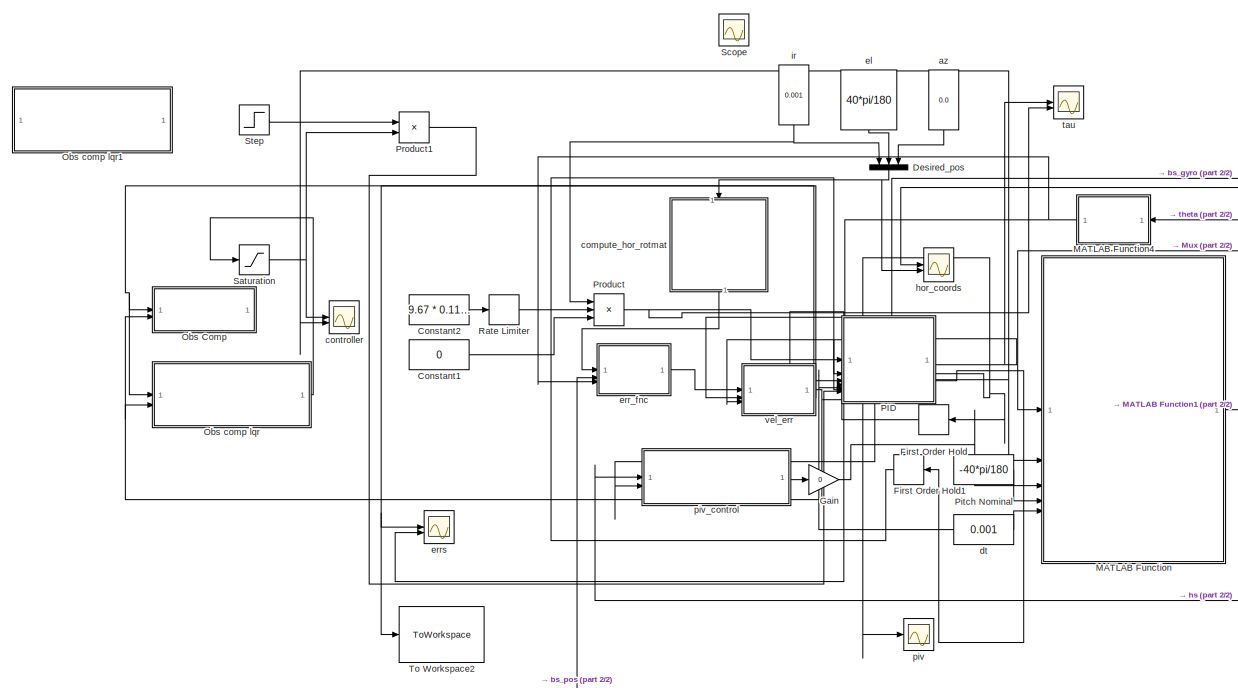
[diagram: root canvas - part 1/2, left side, full height]
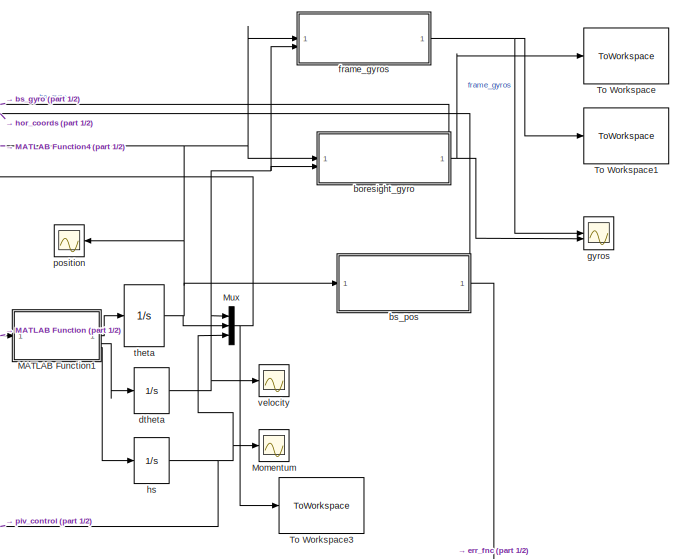
[diagram: root canvas - part 2/2, right side, full height]
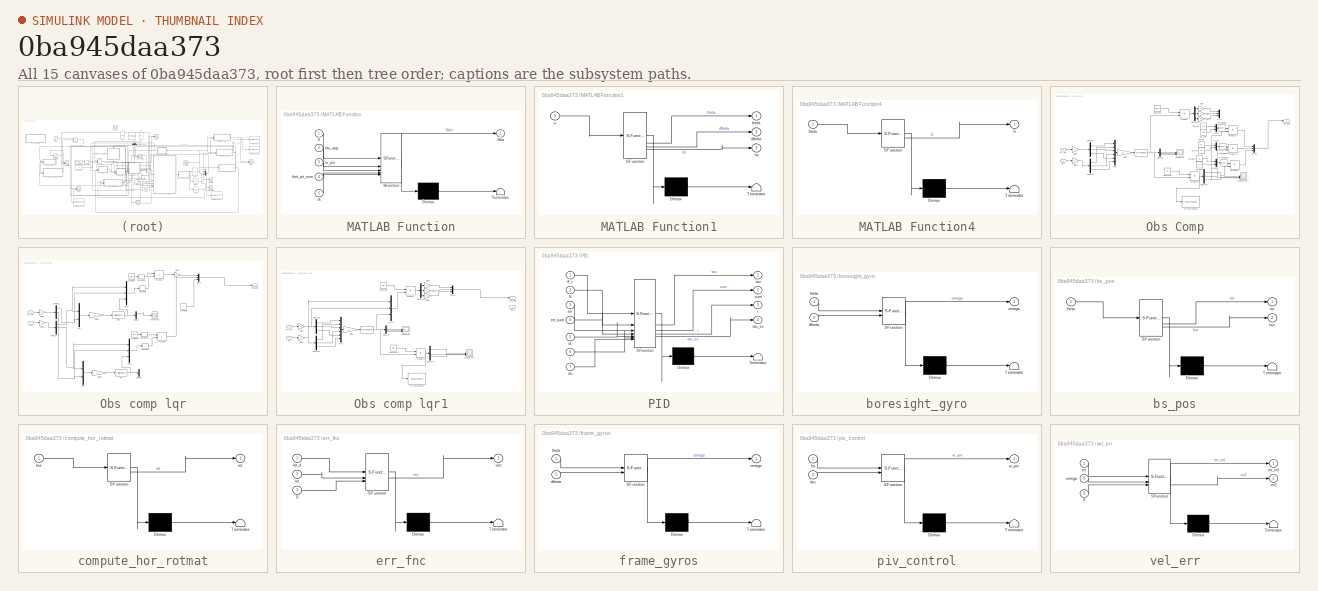
[diagram: thumbnail index - all 15 canvases of the model, root first then tree order]
MODEL slx_0ba945daa373
KIND model
CONFIG AbsTol = auto
CONFIG EnableMultiTasking = off
CONFIG FixedStep = 0.001
CONFIG MaxStep = 0.005
CONFIG MinStep = auto
CONFIG RelTol = 1e-3
CONFIG SampleTimeConstraint = Unconstrained
CONFIG SolverName = FixedStepAuto
CONFIG StartTime = 0.0
CONFIG StopTime = 1000
BLOCK [Constant] Constant1
  Value = 0
BLOCK [Constant] Constant2
  Value = 9.67 * 0.113 * 180 / pi
BLOCK [Mux] Desired_pos
  DisplayOption = bar
  Inputs = 3
  NameLocation = left
BLOCK [FirstOrderHold] First Order Hold
  AllowContinuousInput = on
  ErrorTolerance = 10
  InitialOutput = zeros(3,1)
  NameLocation = top
BLOCK [FirstOrderHold] First Order Hold1
  AllowContinuousInput = on
  ErrorTolerance = 10
  NameLocation = top
BLOCK [Gain] Gain
  Gain = 0
BLOCK [SubSystem] MATLAB Function
  ErrorFcn = Stateflow.Translate.translate
  PermitHierarchicalResolution = ExplicitOnly
  SFBlockType = MATLAB Function
  TreatAsAtomicUnit = on
BLOCK [Demux] MATLAB Function/ Demux 
  Outputs = 1
BLOCK [S-Function] MATLAB Function/ SFunction 
  EnableBusSupport = on
  FunctionName = sf_sfun
  PortCounts = [5 2]
  SFcnIsStateOwnerBlock = off
  SFunctionDeploymentMode = off
  Tag = Stateflow S-Function 2
BLOCK [Terminator] MATLAB Function/ Terminator 
BLOCK [Inport] MATLAB Function/X
BLOCK [Outport] MATLAB Function/Xdot
BLOCK [Inport] MATLAB Function/dt
  Port = 5
BLOCK [Inport] MATLAB Function/tau_app
  Port = 2
BLOCK [Inport] MATLAB Function/thet_pit_nom
  Port = 4
BLOCK [Inport] MATLAB Function/w_piv
  Port = 3
BLOCK [SubSystem] MATLAB Function1
  ErrorFcn = Stateflow.Translate.translate
  PermitHierarchicalResolution = ExplicitOnly
  SFBlockType = MATLAB Function
  TreatAsAtomicUnit = on
BLOCK [Demux] MATLAB Function1/ Demux 
  Outputs = 1
BLOCK [S-Function] MATLAB Function1/ SFunction 
  EnableBusSupport = on
  FunctionName = sf_sfun
  PortCounts = [1 4]
  SFcnIsStateOwnerBlock = off
  SFunctionDeploymentMode = off
  Tag = Stateflow S-Function 1
BLOCK [Terminator] MATLAB Function1/ Terminator 
BLOCK [Outport] MATLAB Function1/dtheta
  Port = 2
BLOCK [Outport] MATLAB Function1/hs
  Port = 3
BLOCK [Outport] MATLAB Function1/theta
BLOCK [Inport] MATLAB Function1/u
BLOCK [SubSystem] MATLAB Function4
  ErrorFcn = Stateflow.Translate.translate
  NameLocation = top
  PermitHierarchicalResolution = ExplicitOnly
  SFBlockType = MATLAB Function
  TreatAsAtomicUnit = on
BLOCK [Demux] MATLAB Function4/ Demux 
  Outputs = 1
BLOCK [S-Function] MATLAB Function4/ SFunction 
  EnableBusSupport = on
  FunctionName = sf_sfun
  PortCounts = [1 2]
  SFcnIsStateOwnerBlock = off
  SFunctionDeploymentMode = off
  Tag = Stateflow S-Function 8
BLOCK [Terminator] MATLAB Function4/ Terminator 
BLOCK [Outport] MATLAB Function4/S
BLOCK [Inport] MATLAB Function4/theta
BLOCK [Scope] Momentum
  Floating = off
  NumInputPorts = 1
  ScopeSpecificationString = Simulink.scopes.TimeScopeBlockCfg('CurrentConfiguration', extmgr.ConfigurationSet(extmgr.Configuration('Core','General UI',true),extmgr.Configuration('Core','Source UI',true),extmgr.Configuration('Sources','WiredSimulink',true,'DataLoggingVariableName','ScopeData2'),extmgr.Configuration('Visuals','Time Domain',true,'SerializedDisplays',{struct('MinYLimReal','-3.54862','MaxYLimReal','31.93757','YLa...<+1483ch>
BLOCK [Mux] Mux
  DisplayOption = bar
  Inputs = 3
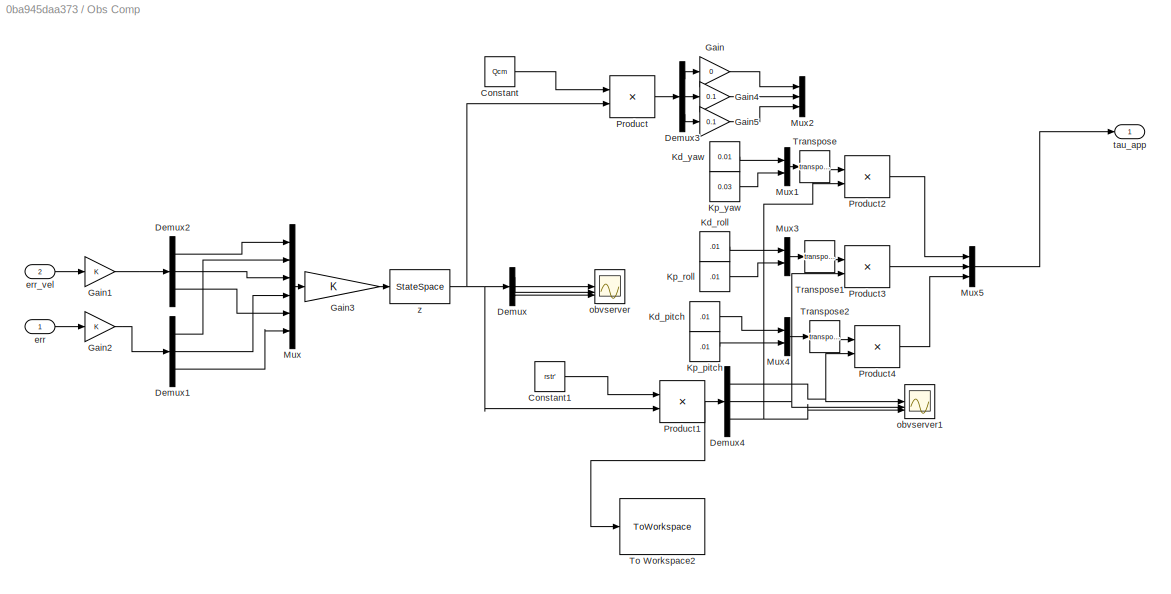
BLOCK [SubSystem] Obs Comp
BLOCK [Constant] Obs Comp/Constant
  Commented = on
  Value = Qcm
BLOCK [Constant] Obs Comp/Constant1
  Value = rstr'
BLOCK [Demux] Obs Comp/Demux
  Outputs = 3
BLOCK [Demux] Obs Comp/Demux1
  Outputs = 3
BLOCK [Demux] Obs Comp/Demux2
  Outputs = 3
BLOCK [Demux] Obs Comp/Demux3
  Commented = on
  Outputs = 3
BLOCK [Demux] Obs Comp/Demux4
  Outputs = 3
BLOCK [Gain] Obs Comp/Gain
  Commented = on
  Gain = 0
BLOCK [Gain] Obs Comp/Gain1
BLOCK [Gain] Obs Comp/Gain2
BLOCK [Gain] Obs Comp/Gain3
BLOCK [Gain] Obs Comp/Gain4
  Commented = on
  Gain = 0.1
BLOCK [Gain] Obs Comp/Gain5
  Commented = on
  Gain = 0.1
BLOCK [Constant] Obs Comp/Kd_pitch
  NameLocation = left
  Value = .01
BLOCK [Constant] Obs Comp/Kd_roll
  NameLocation = left
  Value = .01
BLOCK [Constant] Obs Comp/Kd_yaw
  NameLocation = left
  Value = 0.01
BLOCK [Constant] Obs Comp/Kp_pitch
  NameLocation = left
  Value = .01
BLOCK [Constant] Obs Comp/Kp_roll
  NameLocation = left
  Value = .01
BLOCK [Constant] Obs Comp/Kp_yaw
  NameLocation = left
  Value = 0.03
  VectorParams1D = off
BLOCK [Mux] Obs Comp/Mux
  DisplayOption = bar
  Inputs = 6
BLOCK [Mux] Obs Comp/Mux1
  DisplayOption = bar
  Inputs = 2
BLOCK [Mux] Obs Comp/Mux2
  Commented = on
  DisplayOption = bar
  Inputs = 3
BLOCK [Mux] Obs Comp/Mux3
  DisplayOption = bar
  Inputs = 2
BLOCK [Mux] Obs Comp/Mux4
  DisplayOption = bar
  Inputs = 2
BLOCK [Mux] Obs Comp/Mux5
  DisplayOption = bar
  Inputs = 3
BLOCK [Product] Obs Comp/Product
  Commented = on
  Multiplication = Matrix(*)
BLOCK [Product] Obs Comp/Product1
  Multiplication = Matrix(*)
BLOCK [Product] Obs Comp/Product2
  Multiplication = Matrix(*)
BLOCK [Product] Obs Comp/Product3
  Multiplication = Matrix(*)
BLOCK [Product] Obs Comp/Product4
  Multiplication = Matrix(*)
BLOCK [ToWorkspace] Obs Comp/To Workspace2
  FixptAsFi = on
  MaxDataPoints = inf
  SampleTime = -1
  SaveFormat = Timeseries
  VariableName = servo2
BLOCK [Math] Obs Comp/Transpose
  Operator = transpose
BLOCK [Math] Obs Comp/Transpose1
  Operator = transpose
BLOCK [Math] Obs Comp/Transpose2
  Operator = transpose
BLOCK [Inport] Obs Comp/err
BLOCK [Inport] Obs Comp/err_vel
  Port = 2
BLOCK [Scope] Obs Comp/obvserver
  Floating = off
  NumInputPorts = 3
  ScopeSpecificationString = Simulink.scopes.TimeScopeBlockCfg('CurrentConfiguration', extmgr.ConfigurationSet(extmgr.Configuration('Core','General UI',true),extmgr.Configuration('Core','Source UI',true),extmgr.Configuration('Sources','WiredSimulink',true,'DataLoggingVariableName','ScopeData1'),extmgr.Configuration('Visuals','Time Domain',true,'SerializedDisplays',{struct('MinYLimReal','-0.05566','MaxYLimReal','0.07954','YLab...<+2749ch>
BLOCK [Scope] Obs Comp/obvserver1
  Floating = off
  NumInputPorts = 3
  ScopeSpecificationString = Simulink.scopes.TimeScopeBlockCfg('CurrentConfiguration', extmgr.ConfigurationSet(extmgr.Configuration('Core','General UI',true),extmgr.Configuration('Core','Source UI',true),extmgr.Configuration('Sources','WiredSimulink',true,'DataLoggingVariableName','ScopeData1'),extmgr.Configuration('Visuals','Time Domain',true,'SerializedDisplays',{struct('MinYLimReal','-0.05566','MaxYLimReal','0.07954','YLab...<+2755ch>
BLOCK [Outport] Obs Comp/tau_app
BLOCK [StateSpace] Obs Comp/z
  A = sstr
  B = rstr
  C = eye(ns*3)
  D = zeros(ns*3,6)
  InitialCondition = 0
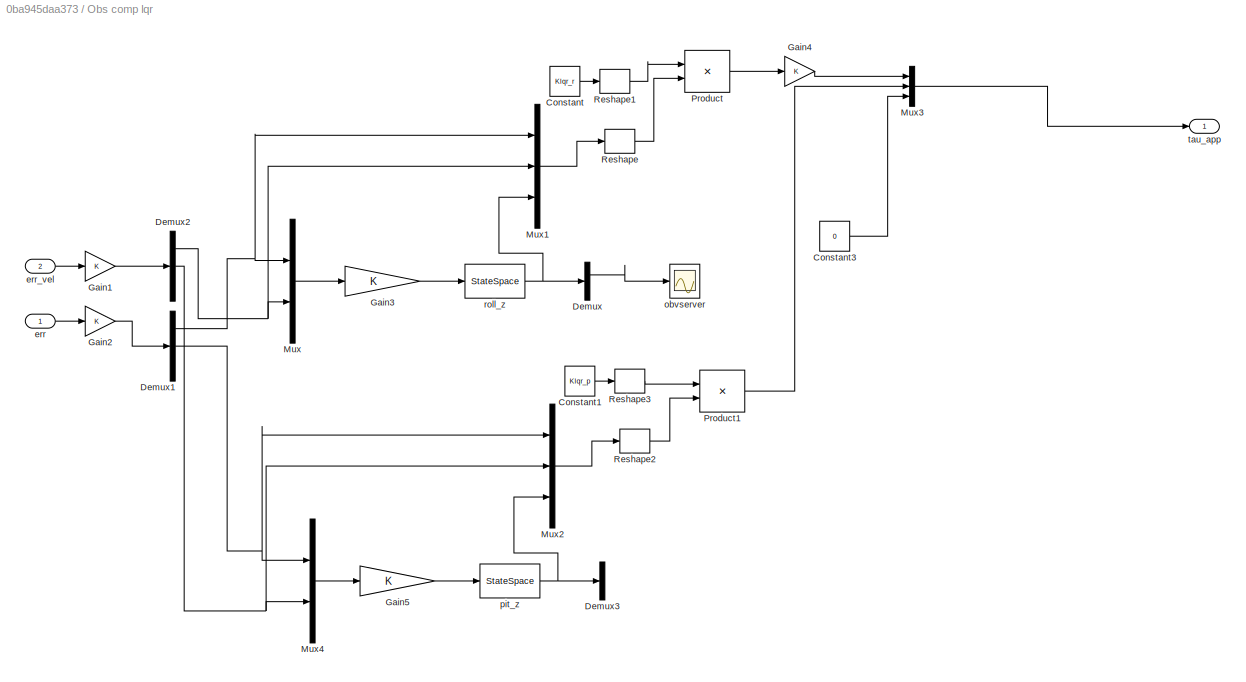
BLOCK [SubSystem] Obs comp lqr
BLOCK [Constant] Obs comp lqr/Constant
  Value = Klqr_r
BLOCK [Constant] Obs comp lqr/Constant1
  Value = Klqr_p
BLOCK [Constant] Obs comp lqr/Constant3
  Value = 0
BLOCK [Demux] Obs comp lqr/Demux
  Outputs = 1
BLOCK [Demux] Obs comp lqr/Demux1
  Outputs = 3
BLOCK [Demux] Obs comp lqr/Demux2
  Outputs = 3
BLOCK [Demux] Obs comp lqr/Demux3
  Outputs = 1
BLOCK [Gain] Obs comp lqr/Gain1
BLOCK [Gain] Obs comp lqr/Gain2
BLOCK [Gain] Obs comp lqr/Gain3
BLOCK [Gain] Obs comp lqr/Gain4
BLOCK [Gain] Obs comp lqr/Gain5
BLOCK [Mux] Obs comp lqr/Mux
  DisplayOption = bar
  Inputs = 2
BLOCK [Mux] Obs comp lqr/Mux1
  DisplayOption = bar
  Inputs = 3
BLOCK [Mux] Obs comp lqr/Mux2
  DisplayOption = bar
  Inputs = 3
BLOCK [Mux] Obs comp lqr/Mux3
  DisplayOption = bar
  Inputs = 3
BLOCK [Mux] Obs comp lqr/Mux4
  DisplayOption = bar
  Inputs = 2
BLOCK [Product] Obs comp lqr/Product
  Multiplication = Matrix(*)
BLOCK [Product] Obs comp lqr/Product1
  Multiplication = Matrix(*)
BLOCK [Reshape] Obs comp lqr/Reshape
  OutputDimensionality = Column vector (2-D)
BLOCK [Reshape] Obs comp lqr/Reshape1
  OutputDimensionality = Row vector (2-D)
BLOCK [Reshape] Obs comp lqr/Reshape2
  OutputDimensionality = Column vector (2-D)
BLOCK [Reshape] Obs comp lqr/Reshape3
  OutputDimensionality = Row vector (2-D)
BLOCK [Inport] Obs comp lqr/err
BLOCK [Inport] Obs comp lqr/err_vel
  Port = 2
BLOCK [Scope] Obs comp lqr/obvserver
  Floating = off
  NumInputPorts = 3
  ScopeSpecificationString = Simulink.scopes.TimeScopeBlockCfg('CurrentConfiguration', extmgr.ConfigurationSet(extmgr.Configuration('Core','General UI',true),extmgr.Configuration('Core','Source UI',true),extmgr.Configuration('Sources','WiredSimulink',true,'DataLoggingVariableName','ScopeData1'),extmgr.Configuration('Visuals','Time Domain',true,'SerializedDisplays',{struct('MinYLimReal','-0.02464','MaxYLimReal','0.01603','YLab...<+2721ch>
BLOCK [StateSpace] Obs comp lqr/pit_z
  A = p
  B = r_pit
  C = eye(ns)
  D = zeros(ns,2)
  InitialCondition = zeros(ns,1)
BLOCK [StateSpace] Obs comp lqr/roll_z
  A = p
  B = r_roll
  C = eye(ns)
  D = zeros(ns,2)
  InitialCondition = zeros(ns,1)
BLOCK [Outport] Obs comp lqr/tau_app
BLOCK [SubSystem] Obs comp lqr1
  Commented = on
  PortSchema = {"entries":[{"content":{"sides":[{"content":{"connectorIds":["In1","In2"]},"type":"ConnectorPlacement.EquallySpacedRectSide","uuid":"f9d8c282-cd97-41f4-aac3-c7cf1abd67fe"},{"content":{"connectorIds":["Out1"],"side":"RIGHT"},"type":"ConnectorPlacement.EquallySpacedRectSide","uuid":"09112819-b147-4feb-a738-ff15dc4c45ff"},{"content":{"side":"TOP"},"type":"ConnectorPlacement.EquallySpacedRectSide","uu...<+378ch>
BLOCK [Constant] Obs comp lqr1/Constant
  Value = Klqr
BLOCK [Constant] Obs comp lqr1/Constant1
  Value = rstr'
BLOCK [Demux] Obs comp lqr1/Demux
  Outputs = 3
BLOCK [Demux] Obs comp lqr1/Demux1
  Outputs = 3
BLOCK [Demux] Obs comp lqr1/Demux2
  Outputs = 3
BLOCK [Demux] Obs comp lqr1/Demux3
  Outputs = 3
BLOCK [Demux] Obs comp lqr1/Demux4
  Outputs = 3
BLOCK [Gain] Obs comp lqr1/Gain
  Gain = 0
BLOCK [Gain] Obs comp lqr1/Gain1
BLOCK [Gain] Obs comp lqr1/Gain2
BLOCK [Gain] Obs comp lqr1/Gain3
BLOCK [Gain] Obs comp lqr1/Gain4
  Gain = 0
BLOCK [Gain] Obs comp lqr1/Gain5
  Gain = 0
BLOCK [Mux] Obs comp lqr1/Mux
  DisplayOption = bar
  Inputs = 6
BLOCK [Mux] Obs comp lqr1/Mux1
  DisplayOption = bar
  Inputs = 3
BLOCK [Mux] Obs comp lqr1/Mux3
  DisplayOption = bar
  Inputs = 3
BLOCK [Outport] Obs comp lqr1/Out2
  Port = 2
BLOCK [Product] Obs comp lqr1/Product
  Multiplication = Matrix(*)
BLOCK [Product] Obs comp lqr1/Product1
  Multiplication = Matrix(*)
BLOCK [ToWorkspace] Obs comp lqr1/To Workspace2
  FixptAsFi = on
  MaxDataPoints = inf
  SampleTime = -1
  SaveFormat = Timeseries
  VariableName = servo1
BLOCK [Inport] Obs comp lqr1/err
BLOCK [Inport] Obs comp lqr1/err_vel
  Port = 2
BLOCK [Scope] Obs comp lqr1/obvserver
  Floating = off
  NumInputPorts = 3
  ScopeSpecificationString = Simulink.scopes.TimeScopeBlockCfg('CurrentConfiguration', extmgr.ConfigurationSet(extmgr.Configuration('Core','General UI',true),extmgr.Configuration('Core','Source UI',true),extmgr.Configuration('Sources','WiredSimulink',true,'DataLoggingVariableName','ScopeData1'),extmgr.Configuration('Visuals','Time Domain',true,'SerializedDisplays',{struct('MinYLimReal','-4.20241','MaxYLimReal','4.42775','YLab...<+2915ch>
BLOCK [Scope] Obs comp lqr1/obvserver1
  Floating = off
  NumInputPorts = 3
  ScopeSpecificationString = Simulink.scopes.TimeScopeBlockCfg('CurrentConfiguration', extmgr.ConfigurationSet(extmgr.Configuration('Core','General UI',true),extmgr.Configuration('Core','Source UI',true),extmgr.Configuration('Sources','WiredSimulink',true,'DataLoggingVariableName','ScopeData1'),extmgr.Configuration('Visuals','Time Domain',true,'SerializedDisplays',{struct('MinYLimReal','-3.66402','MaxYLimReal','3.86991','YLab...<+2777ch>
BLOCK [Outport] Obs comp lqr1/tau_app
BLOCK [StateSpace] Obs comp lqr1/z
  A = sstr
  B = rstr
  C = eye(ns*3)
  D = zeros(ns*3,6)
  InitialCondition = 0
BLOCK [SubSystem] PID
  ErrorFcn = Stateflow.Translate.translate
  PermitHierarchicalResolution = ExplicitOnly
  SFBlockType = MATLAB Function
  TreatAsAtomicUnit = on
BLOCK [Demux] PID/ Demux 
  Outputs = 1
BLOCK [S-Function] PID/ SFunction 
  EnableBusSupport = on
  FunctionName = sf_sfun
  PortCounts = [7 5]
  SFcnIsStateOwnerBlock = off
  SFunctionDeploymentMode = off
  Tag = Stateflow S-Function 7
BLOCK [Terminator] PID/ Terminator 
BLOCK [Inport] PID/S
  Port = 2
BLOCK [Inport] PID/dt
  Port = 5
BLOCK [Inport] PID/du
  Port = 7
BLOCK [Inport] PID/err
  Port = 3
BLOCK [Inport] PID/err_sum
  Port = 4
BLOCK [Inport] PID/ff_r
BLOCK [Outport] PID/sum
  Port = 2
BLOCK [Outport] PID/t
  Port = 3
BLOCK [Inport] PID/t 
  Port = 6
BLOCK [Outport] PID/tau
BLOCK [Outport] PID/tau_ss
  Port = 4
BLOCK [Constant] Pitch Nominal
  Value = -40*pi/180
BLOCK [Product] Product
  Inputs = 3
BLOCK [Product] Product1
BLOCK [RateLimiter] Rate Limiter
  FallingSlewLimit = -0.25
  RisingSlewLimit = 15
  SampleTimeMode = inherited
BLOCK [Saturate] Saturation
  LowerLimit = -1
  UpperLimit = 1
BLOCK [Scope] Scope
  Floating = off
  IOType = viewer
  NumInputPorts = 1
  ScopeSpecificationString = Simulink.scopes.TimeScopeBlockCfg('CurrentConfiguration', extmgr.ConfigurationSet(extmgr.Configuration('Core','General UI',true),extmgr.Configuration('Core','Source UI',true),extmgr.Configuration('Sources','WiredSimulink',true,'DataLoggingVariableName','ScopeData1'),extmgr.Configuration('Visuals','Time Domain',true,'SerializedDisplays',{struct('MinYLimReal','-0.10334','MaxYLimReal','0.7873','YLabe...<+1428ch>
BLOCK [Step] Step
  Before = 1
  SampleTime = 0
  Time = 0
BLOCK [ToWorkspace] To Workspace
  FixptAsFi = on
  MaxDataPoints = inf
  SampleTime = -1
  SaveFormat = Timeseries
  VariableName = gyro
BLOCK [ToWorkspace] To Workspace1
  FixptAsFi = on
  MaxDataPoints = inf
  SampleTime = -1
  SaveFormat = Timeseries
  VariableName = frame_gyro
BLOCK [ToWorkspace] To Workspace2
  FixptAsFi = on
  MaxDataPoints = inf
  SampleTime = -1
  SaveFormat = Timeseries
  VariableName = err2
BLOCK [ToWorkspace] To Workspace3
  FixptAsFi = on
  MaxDataPoints = 1
  SampleTime = -1
  SaveFormat = Timeseries
  VariableName = ics
BLOCK [Constant] az
  NameLocation = left
  Value = 0.0
BLOCK [SubSystem] boresight_gyro
  ErrorFcn = Stateflow.Translate.translate
  PermitHierarchicalResolution = ExplicitOnly
  SFBlockType = MATLAB Function
  TreatAsAtomicUnit = on
BLOCK [Demux] boresight_gyro/ Demux 
  Outputs = 1
BLOCK [S-Function] boresight_gyro/ SFunction 
  EnableBusSupport = on
  FunctionName = sf_sfun
  PortCounts = [2 2]
  SFcnIsStateOwnerBlock = off
  SFunctionDeploymentMode = off
  Tag = Stateflow S-Function 3
BLOCK [Terminator] boresight_gyro/ Terminator 
BLOCK [Inport] boresight_gyro/dtheta
  Port = 2
BLOCK [Outport] boresight_gyro/omega
BLOCK [Inport] boresight_gyro/theta
BLOCK [SubSystem] bs_pos
  ErrorFcn = Stateflow.Translate.translate
  PermitHierarchicalResolution = ExplicitOnly
  SFBlockType = MATLAB Function
  TreatAsAtomicUnit = on
BLOCK [Demux] bs_pos/ Demux 
  Outputs = 1
BLOCK [S-Function] bs_pos/ SFunction 
  EnableBusSupport = on
  FunctionName = sf_sfun
  PortCounts = [1 3]
  SFcnIsStateOwnerBlock = off
  SFunctionDeploymentMode = off
  Tag = Stateflow S-Function 4
BLOCK [Terminator] bs_pos/ Terminator 
BLOCK [Outport] bs_pos/hor
  Port = 2
BLOCK [Outport] bs_pos/rot
BLOCK [Inport] bs_pos/theta
BLOCK [SubSystem] compute_hor_rotmat
  ErrorFcn = Stateflow.Translate.translate
  NameLocation = left
  PermitHierarchicalResolution = ExplicitOnly
  SFBlockType = MATLAB Function
  TreatAsAtomicUnit = on
BLOCK [Demux] compute_hor_rotmat/ Demux 
  Outputs = 1
BLOCK [S-Function] compute_hor_rotmat/ SFunction 
  EnableBusSupport = on
  FunctionName = sf_sfun
  PortCounts = [1 2]
  SFcnIsStateOwnerBlock = off
  SFunctionDeploymentMode = off
  Tag = Stateflow S-Function 5
BLOCK [Terminator] compute_hor_rotmat/ Terminator 
BLOCK [Inport] compute_hor_rotmat/hor
BLOCK [Outport] compute_hor_rotmat/rot
BLOCK [Scope] controller
  Floating = off
  NumInputPorts = 2
  ScopeSpecificationString = Simulink.scopes.TimeScopeBlockCfg('CurrentConfiguration', extmgr.ConfigurationSet(extmgr.Configuration('Core','General UI',true),extmgr.Configuration('Core','Source UI',true),extmgr.Configuration('Sources','WiredSimulink',true,'DataLoggingVariableName','ScopeData2'),extmgr.Configuration('Visuals','Time Domain',true,'SerializedDisplays',{struct('MinYLimReal','-1.24578','MaxYLimReal','1.212','YLabel...<+2392ch>
BLOCK [Constant] dt
  Value = 0.001
BLOCK [Integrator] dtheta
  ContinuousStateAttributes = 'dtheta'
  InitialCondition = d_theta_dt_0
BLOCK [Constant] el
  NameLocation = left
  Value = 40*pi/180
BLOCK [SubSystem] err_fnc
  ErrorFcn = Stateflow.Translate.translate
  PermitHierarchicalResolution = ExplicitOnly
  SFBlockType = MATLAB Function
  TreatAsAtomicUnit = on
BLOCK [Demux] err_fnc/ Demux 
  Outputs = 1
BLOCK [S-Function] err_fnc/ SFunction 
  EnableBusSupport = on
  FunctionName = sf_sfun
  PortCounts = [3 2]
  SFcnIsStateOwnerBlock = off
  SFunctionDeploymentMode = off
  Tag = Stateflow S-Function 6
BLOCK [Terminator] err_fnc/ Terminator 
BLOCK [Inport] err_fnc/S
  Port = 3
BLOCK [Inport] err_fnc/rot
  Port = 2
BLOCK [Inport] err_fnc/rot_d
BLOCK [Outport] err_fnc/vec
BLOCK [Scope] errs
  Floating = off
  NumInputPorts = 2
  ScopeSpecificationString = Simulink.scopes.TimeScopeBlockCfg('CurrentConfiguration', extmgr.ConfigurationSet(extmgr.Configuration('Core','General UI',true),extmgr.Configuration('Core','Source UI',true),extmgr.Configuration('Sources','WiredSimulink',true,'DataLoggingVariableName','ScopeData6'),extmgr.Configuration('Visuals','Time Domain',true,'SerializedDisplays',{struct('MinYLimReal','-0.0001','MaxYLimReal','0.0001','YLabel...<+1775ch>
BLOCK [SubSystem] frame_gyros
  ErrorFcn = Stateflow.Translate.translate
  PermitHierarchicalResolution = ExplicitOnly
  SFBlockType = MATLAB Function
  TreatAsAtomicUnit = on
BLOCK [Demux] frame_gyros/ Demux 
  Outputs = 1
BLOCK [S-Function] frame_gyros/ SFunction 
  EnableBusSupport = on
  FunctionName = sf_sfun
  PortCounts = [2 2]
  SFcnIsStateOwnerBlock = off
  SFunctionDeploymentMode = off
  Tag = Stateflow S-Function 13
BLOCK [Terminator] frame_gyros/ Terminator 
BLOCK [Inport] frame_gyros/dtheta
  Port = 2
BLOCK [Outport] frame_gyros/omega
BLOCK [Inport] frame_gyros/theta
BLOCK [Scope] gyros
  Floating = off
  NumInputPorts = 2
  ScopeSpecificationString = Simulink.scopes.TimeScopeBlockCfg('CurrentConfiguration', extmgr.ConfigurationSet(extmgr.Configuration('Core','General UI',true),extmgr.Configuration('Core','Source UI',true),extmgr.Configuration('Sources','WiredSimulink',true,'DataLoggingVariableName','ScopeData2'),extmgr.Configuration('Visuals','Time Domain',true,'SerializedDisplays',{struct('MinYLimReal','-0.00481','MaxYLimReal','0.00359','YLab...<+2474ch>
BLOCK [Scope] hor_coords
  Floating = off
  NumInputPorts = 3
  ScopeSpecificationString = Simulink.scopes.TimeScopeBlockCfg('CurrentConfiguration', extmgr.ConfigurationSet(extmgr.Configuration('Core','General UI',true),extmgr.Configuration('Core','Source UI',true),extmgr.Configuration('Sources','WiredSimulink',true,'DataLoggingVariableName','ScopeData4'),extmgr.Configuration('Visuals','Time Domain',true,'SerializedDisplays',{struct('MinYLimReal','-0.1314','MaxYLimReal','0.79575','YLabe...<+2043ch>
BLOCK [Integrator] hs
  ContinuousStateAttributes = 'hs'
  InitialCondition = x0(19:21)
  LimitOutput = on
  LowerSaturationLimit = -4*pi*4.5
  UpperSaturationLimit = 4*pi*4.5
BLOCK [Constant] ir
  NameLocation = left
  Value = 0.001
BLOCK [Scope] piv
  Floating = off
  NumInputPorts = 1
  ScopeSpecificationString = Simulink.scopes.TimeScopeBlockCfg('CurrentConfiguration', extmgr.ConfigurationSet(extmgr.Configuration('Core','General UI',true),extmgr.Configuration('Core','Source UI',true),extmgr.Configuration('Sources','WiredSimulink',true,'DataLoggingVariableName','ScopeData1'),extmgr.Configuration('Visuals','Time Domain',true,'SerializedDisplays',{struct('MinYLimReal','-0.00078','MaxYLimReal','0.001','YLabel...<+1624ch>
BLOCK [SubSystem] piv_control
  ErrorFcn = Stateflow.Translate.translate
  PermitHierarchicalResolution = ExplicitOnly
  SFBlockType = MATLAB Function
  TreatAsAtomicUnit = on
BLOCK [Demux] piv_control/ Demux 
  Outputs = 1
BLOCK [S-Function] piv_control/ SFunction 
  EnableBusSupport = on
  FunctionName = sf_sfun
  PortCounts = [2 2]
  SFcnIsStateOwnerBlock = off
  SFunctionDeploymentMode = off
  Tag = Stateflow S-Function 9
BLOCK [Terminator] piv_control/ Terminator 
BLOCK [Inport] piv_control/hs
BLOCK [Inport] piv_control/tau
  Port = 2
BLOCK [Outport] piv_control/w_piv
BLOCK [Scope] position
  Floating = off
  NameLocation = top
  NumInputPorts = 1
  ScopeSpecificationString = Simulink.scopes.TimeScopeBlockCfg('CurrentConfiguration', extmgr.ConfigurationSet(extmgr.Configuration('Core','General UI',true),extmgr.Configuration('Core','Source UI',true),extmgr.Configuration('Sources','WiredSimulink',true),extmgr.Configuration('Visuals','Time Domain',true,'SerializedDisplays',{struct('MinYLimReal','-0.80577','MaxYLimReal','0.18139','YLabelReal','','MinYLimMag','0.00000','MaxY...<+1646ch>
BLOCK [Scope] tau
  Floating = off
  NumInputPorts = 2
  ScopeSpecificationString = Simulink.scopes.TimeScopeBlockCfg('CurrentConfiguration', extmgr.ConfigurationSet(extmgr.Configuration('Core','General UI',true),extmgr.Configuration('Core','Source UI',true),extmgr.Configuration('Sources','WiredSimulink',true,'DataLoggingVariableName','ScopeData5'),extmgr.Configuration('Visuals','Time Domain',true,'SerializedDisplays',{struct('MinYLimReal','-0.00851','MaxYLimReal','0.01407','YLab...<+1690ch>
BLOCK [Integrator] theta
  ContinuousStateAttributes = 'theta'
  InitialCondition = theta_0
  LowerSaturationLimit = 0
  UpperSaturationLimit = 1
  WrapState = on
BLOCK [SubSystem] vel_err
  ErrorFcn = Stateflow.Translate.translate
  PermitHierarchicalResolution = ExplicitOnly
  SFBlockType = MATLAB Function
  TreatAsAtomicUnit = on
BLOCK [Demux] vel_err/ Demux 
  Outputs = 1
BLOCK [S-Function] vel_err/ SFunction 
  EnableBusSupport = on
  FunctionName = sf_sfun
  PortCounts = [3 3]
  SFcnIsStateOwnerBlock = off
  SFunctionDeploymentMode = off
  Tag = Stateflow S-Function 10
BLOCK [Terminator] vel_err/ Terminator 
BLOCK [Inport] vel_err/S
  Port = 3
BLOCK [Inport] vel_err/err
BLOCK [Outport] vel_err/err2
  Port = 2
BLOCK [Outport] vel_err/err_vel
BLOCK [Inport] vel_err/omega
  Port = 2
BLOCK [Scope] velocity
  Floating = off
  NumInputPorts = 1
  ScopeSpecificationString = Simulink.scopes.TimeScopeBlockCfg('CurrentConfiguration', extmgr.ConfigurationSet(extmgr.Configuration('Core','General UI',true),extmgr.Configuration('Core','Source UI',true),extmgr.Configuration('Sources','WiredSimulink',true,'DataLoggingVariableName','ScopeData1'),extmgr.Configuration('Visuals','Time Domain',true,'SerializedDisplays',{struct('MinYLimReal','-0.00092','MaxYLimReal','0.00093','YLab...<+1695ch>
LINE Constant1:1 -> Product:3
LINE Constant2:1 -> Rate Limiter:1
NET Desired_pos:1 -> compute_hor_rotmat:1, hor_coords:2
LINE First Order Hold1:1 -> PID:6
LINE First Order Hold:1 -> PID:4
LINE Gain:1 -> MATLAB Function:3
LINE MATLAB Function1:1 -> theta:1
LINE MATLAB Function1:2 -> dtheta:1
LINE MATLAB Function1:3 -> hs:1
NET MATLAB Function4:1 -> PID:2, err_fnc:3, vel_err:3
LINE MATLAB Function:1 -> MATLAB Function1:1
NET Mux:1 -> MATLAB Function:1, To Workspace3:1
LINE Obs Comp/Constant1:1 -> Obs Comp/Product1:1
LINE Obs Comp/Constant:1 -> Obs Comp/Product:1
LINE Obs Comp/Demux1:1 -> Obs Comp/Mux:2
LINE Obs Comp/Demux1:2 -> Obs Comp/Mux:4
LINE Obs Comp/Demux1:3 -> Obs Comp/Mux:6
LINE Obs Comp/Demux2:1 -> Obs Comp/Mux:1
LINE Obs Comp/Demux2:2 -> Obs Comp/Mux:3
LINE Obs Comp/Demux2:3 -> Obs Comp/Mux:5
LINE Obs Comp/Demux3:1 -> Obs Comp/Gain:1
LINE Obs Comp/Demux3:2 -> Obs Comp/Gain4:1
LINE Obs Comp/Demux3:3 -> Obs Comp/Gain5:1
NET Obs Comp/Demux4:1 -> Obs Comp/Product4:2, Obs Comp/obvserver1:1
NET Obs Comp/Demux4:2 -> Obs Comp/Product3:2, Obs Comp/obvserver1:2
NET Obs Comp/Demux4:3 -> Obs Comp/Product2:2, Obs Comp/obvserver1:3
LINE Obs Comp/Demux:1 -> Obs Comp/obvserver:1
LINE Obs Comp/Demux:2 -> Obs Comp/obvserver:2
LINE Obs Comp/Demux:3 -> Obs Comp/obvserver:3
LINE Obs Comp/Gain1:1 -> Obs Comp/Demux2:1
LINE Obs Comp/Gain2:1 -> Obs Comp/Demux1:1
LINE Obs Comp/Gain3:1 -> Obs Comp/z:1
LINE Obs Comp/Gain4:1 -> Obs Comp/Mux2:2
LINE Obs Comp/Gain5:1 -> Obs Comp/Mux2:3
LINE Obs Comp/Gain:1 -> Obs Comp/Mux2:1
LINE Obs Comp/Kd_pitch:1 -> Obs Comp/Mux4:1
LINE Obs Comp/Kd_roll:1 -> Obs Comp/Mux3:1
LINE Obs Comp/Kd_yaw:1 -> Obs Comp/Mux1:1
LINE Obs Comp/Kp_pitch:1 -> Obs Comp/Mux4:2
LINE Obs Comp/Kp_roll:1 -> Obs Comp/Mux3:2
LINE Obs Comp/Kp_yaw:1 -> Obs Comp/Mux1:2
LINE Obs Comp/Mux1:1 -> Obs Comp/Transpose:1
LINE Obs Comp/Mux3:1 -> Obs Comp/Transpose1:1
LINE Obs Comp/Mux4:1 -> Obs Comp/Transpose2:1
LINE Obs Comp/Mux5:1 -> Obs Comp/tau_app:1
LINE Obs Comp/Mux:1 -> Obs Comp/Gain3:1
NET Obs Comp/Product1:1 -> Obs Comp/Demux4:1, Obs Comp/To Workspace2:1
LINE Obs Comp/Product2:1 -> Obs Comp/Mux5:1
LINE Obs Comp/Product3:1 -> Obs Comp/Mux5:2
LINE Obs Comp/Product4:1 -> Obs Comp/Mux5:3
LINE Obs Comp/Product:1 -> Obs Comp/Demux3:1
LINE Obs Comp/Transpose1:1 -> Obs Comp/Product3:1
LINE Obs Comp/Transpose2:1 -> Obs Comp/Product4:1
LINE Obs Comp/Transpose:1 -> Obs Comp/Product2:1
LINE Obs Comp/err:1 -> Obs Comp/Gain2:1
LINE Obs Comp/err_vel:1 -> Obs Comp/Gain1:1
NET Obs Comp/z:1 -> Obs Comp/Demux:1, Obs Comp/Product1:2, Obs Comp/Product:2
LINE Obs comp lqr/Constant1:1 -> Obs comp lqr/Reshape3:1
LINE Obs comp lqr/Constant3:1 -> Obs comp lqr/Mux3:3
LINE Obs comp lqr/Constant:1 -> Obs comp lqr/Reshape1:1
NET Obs comp lqr/Demux1:1 -> Obs comp lqr/Mux1:1, Obs comp lqr/Mux:1
NET Obs comp lqr/Demux1:2 -> Obs comp lqr/Mux2:1, Obs comp lqr/Mux4:1
NET Obs comp lqr/Demux2:1 -> Obs comp lqr/Mux1:2, Obs comp lqr/Mux:2
NET Obs comp lqr/Demux2:2 -> Obs comp lqr/Mux2:2, Obs comp lqr/Mux4:2
LINE Obs comp lqr/Demux:1 -> Obs comp lqr/obvserver:1
LINE Obs comp lqr/Gain1:1 -> Obs comp lqr/Demux2:1
LINE Obs comp lqr/Gain2:1 -> Obs comp lqr/Demux1:1
LINE Obs comp lqr/Gain3:1 -> Obs comp lqr/roll_z:1
LINE Obs comp lqr/Gain4:1 -> Obs comp lqr/Mux3:1
LINE Obs comp lqr/Gain5:1 -> Obs comp lqr/pit_z:1
LINE Obs comp lqr/Mux1:1 -> Obs comp lqr/Reshape:1
LINE Obs comp lqr/Mux2:1 -> Obs comp lqr/Reshape2:1
LINE Obs comp lqr/Mux3:1 -> Obs comp lqr/tau_app:1
LINE Obs comp lqr/Mux4:1 -> Obs comp lqr/Gain5:1
LINE Obs comp lqr/Mux:1 -> Obs comp lqr/Gain3:1
LINE Obs comp lqr/Product1:1 -> Obs comp lqr/Mux3:2
LINE Obs comp lqr/Product:1 -> Obs comp lqr/Gain4:1
LINE Obs comp lqr/Reshape1:1 -> Obs comp lqr/Product:1
LINE Obs comp lqr/Reshape2:1 -> Obs comp lqr/Product1:2
LINE Obs comp lqr/Reshape3:1 -> Obs comp lqr/Product1:1
LINE Obs comp lqr/Reshape:1 -> Obs comp lqr/Product:2
LINE Obs comp lqr/err:1 -> Obs comp lqr/Gain2:1
LINE Obs comp lqr/err_vel:1 -> Obs comp lqr/Gain1:1
NET Obs comp lqr/pit_z:1 -> Obs comp lqr/Demux3:1, Obs comp lqr/Mux2:3
NET Obs comp lqr/roll_z:1 -> Obs comp lqr/Demux:1, Obs comp lqr/Mux1:3
LINE Obs comp lqr1/Constant1:1 -> Obs comp lqr1/Product1:1
LINE Obs comp lqr1/Constant:1 -> Obs comp lqr1/Product:1
LINE Obs comp lqr1/Demux1:1 -> Obs comp lqr1/Mux:2
LINE Obs comp lqr1/Demux1:2 -> Obs comp lqr1/Mux:4
LINE Obs comp lqr1/Demux1:3 -> Obs comp lqr1/Mux:6
LINE Obs comp lqr1/Demux2:1 -> Obs comp lqr1/Mux:1
LINE Obs comp lqr1/Demux2:2 -> Obs comp lqr1/Mux:3
LINE Obs comp lqr1/Demux2:3 -> Obs comp lqr1/Mux:5
LINE Obs comp lqr1/Demux3:1 -> Obs comp lqr1/Gain:1
LINE Obs comp lqr1/Demux3:2 -> Obs comp lqr1/Gain4:1
LINE Obs comp lqr1/Demux3:3 -> Obs comp lqr1/Gain5:1
LINE Obs comp lqr1/Demux4:1 -> Obs comp lqr1/obvserver1:1
LINE Obs comp lqr1/Demux4:2 -> Obs comp lqr1/obvserver1:2
LINE Obs comp lqr1/Demux4:3 -> Obs comp lqr1/obvserver1:3
LINE Obs comp lqr1/Demux:1 -> Obs comp lqr1/obvserver:1
LINE Obs comp lqr1/Demux:2 -> Obs comp lqr1/obvserver:2
LINE Obs comp lqr1/Demux:3 -> Obs comp lqr1/obvserver:3
NET Obs comp lqr1/Gain1:1 -> Obs comp lqr1/Demux2:1, Obs comp lqr1/Mux1:2
NET Obs comp lqr1/Gain2:1 -> Obs comp lqr1/Demux1:1, Obs comp lqr1/Mux1:1
LINE Obs comp lqr1/Gain3:1 -> Obs comp lqr1/z:1
LINE Obs comp lqr1/Gain4:1 -> Obs comp lqr1/Mux3:2
LINE Obs comp lqr1/Gain5:1 -> Obs comp lqr1/Mux3:3
LINE Obs comp lqr1/Gain:1 -> Obs comp lqr1/Mux3:1
LINE Obs comp lqr1/Mux1:1 -> Obs comp lqr1/Product:2
LINE Obs comp lqr1/Mux3:1 -> Obs comp lqr1/tau_app:1
LINE Obs comp lqr1/Mux:1 -> Obs comp lqr1/Gain3:1
NET Obs comp lqr1/Product1:1 -> Obs comp lqr1/Demux4:1, Obs comp lqr1/To Workspace2:1
LINE Obs comp lqr1/Product:1 -> Obs comp lqr1/Demux3:1
LINE Obs comp lqr1/err:1 -> Obs comp lqr1/Gain2:1
LINE Obs comp lqr1/err_vel:1 -> Obs comp lqr1/Gain1:1
NET Obs comp lqr1/z:1 -> Obs comp lqr1/Demux:1, Obs comp lqr1/Mux1:3, Obs comp lqr1/Product1:2
LINE Obs comp lqr:1 -> Saturation:1
NET PID:1 -> MATLAB Function:2, controller:2, piv_control:2, tau:1
NET PID:2 -> First Order Hold:1, piv:1
LINE PID:3 -> First Order Hold1:1
LINE Pitch Nominal:1 -> MATLAB Function:4
LINE Product1:1 -> PID:7
NET Product:1 -> PID:1, tau:2
LINE Rate Limiter:1 -> Product:2
NET Saturation:1 -> Product1:2, controller:1
LINE Step:1 -> Product1:1
LINE az:1 -> Desired_pos:3
NET boresight_gyro:1 -> To Workspace:1, gyros:2, vel_err:2
LINE bs_pos:1 -> err_fnc:2
LINE bs_pos:2 -> hor_coords:1
LINE compute_hor_rotmat:1 -> err_fnc:1
NET dt:1 -> MATLAB Function:5, PID:5
NET dtheta:1 -> Mux:1, boresight_gyro:2, frame_gyros:2, velocity:1
LINE el:1 -> Desired_pos:2
LINE err_fnc:1 -> vel_err:1
NET frame_gyros:1 -> To Workspace1:1, gyros:1
NET hs:1 -> Momentum:1, Mux:3, piv_control:1
NET ir:1 -> Desired_pos:1, Product:1
LINE piv_control:1 -> Gain:1
NET theta:1 -> MATLAB Function4:1, Mux:2, boresight_gyro:1, bs_pos:1, frame_gyros:1, position:1
NET vel_err:1 -> Obs Comp:2, Obs comp lqr:2, PID:3, errs:2
NET vel_err:2 -> Obs Comp:1, Obs comp lqr:1, To Workspace2:1, errs:1
note: NET lines group one-source signal fan-out (src -> all destinations, sorted); 1:1 wires keep LINE
CHART vel_err states=1 transitions=1
  STATE_LABEL 'eML_blk_kernel()'
  STATE_LABEL "SCRIPT:\nfunction [err_vel, err2] = fcn(err, omega, S)\n\n    d_thet = inv(S) * omega;\n\n    dr = d_thet(1);\n    dp = d_thet(2);\n    dy = d_thet(3);\n\n\n    err2 = S'*S*err;\n    % err2 = err;\n\n    er  = err2(1);\n    ep = err2(2);\n    ey = err2(3);\n\n    %% yaw\n\n    max_v = .01;\n    slope = 2;\n    yd = 1*max_v * erf(slope*ey);\n\n    %% pitch\n    max_v = 0.0025;\n    slope = 10*.025;\n    pd = 1*max_v  * erf(...<+175ch>"
CHART frame_gyros states=1 transitions=1
  STATE_LABEL 'eML_blk_kernel()'
  STATE_LABEL 'SCRIPT:\nfunction omega  = frame_gyros(theta,dtheta)\n%UNTITLED2 Summary of this function goes here\n%   Detailed explanation goes here\nz_n = [0.0, 1.0, 0.0, 1.0, 0.0, 0.0, 0.0, 1.0, 0.0;\n       0.0, 0.0, 1.0, 0.0, 1.0, 0.0, 0.0, 0.0, 1.0;\n       1.0, 0.0, 0.0, 0.0, 0.0, 1.0, 1.0, 0.0, 0.0];\n\ns7 = zeros(3,7);\ns8 = zeros(3,8);\n\ns9 = zeros(3,9);\nfor i = 1:9\n    Cn = axis2rot(z_n(:,i), theta(i));\n    s9...<+276ch>'
CHART MATLAB Function1 states=1 transitions=1
  STATE_LABEL 'eML_blk_kernel()'
  STATE_LABEL 'SCRIPT:\nfunction [theta, dtheta, hs] = split(u)\n    \n    dtheta = u(1:9);\n    theta = u(10:18);\n    hs = u(19:21);\nend'
CHART MATLAB Function states=1 transitions=1
  STATE_LABEL 'eML_blk_kernel()'
  STATE_LABEL 'SCRIPT:\nfunction Xdot  = bit_propagator(X, tau_app, w_piv, thet_pit_nom, dt)\n    \n    piv_flag = true;\n    tau_max_piv = 5;\n\n    [ndof, g0, r_n1_n, z_n, p_n, m_n, c_n, ...\n    i_n, m_w_n,  i_rw, bear_k_cst, bear_c_cst, k_d, b_d, ...\n    w_rw_max, w_rw_nom, hs_rw, hs_rw_max, a_flex, b_flex, a_df, b_df] = init_func();\n\n    %split the state\n\n    theta = X(10:18);\n    dtheta = X(1:9);\n    hs = X(19:21...<+1915ch>'
CHART boresight_gyro states=1 transitions=1
  STATE_LABEL 'eML_blk_kernel()'
  STATE_LABEL 'SCRIPT:\nfunction omega  = comp_ang_vel(theta,dtheta)\n%UNTITLED2 Summary of this function goes here\n%   Detailed explanation goes here\nz_n = [0.0, 1.0, 0.0, 1.0, 0.0, 0.0, 0.0, 1.0, 0.0;\n       0.0, 0.0, 1.0, 0.0, 1.0, 0.0, 0.0, 0.0, 1.0;\n       1.0, 0.0, 0.0, 0.0, 0.0, 1.0, 1.0, 0.0, 0.0];\n\ns9 = zeros(3,9);\nfor i = 1:9\n    Cn = axis2rot(z_n(:,i), theta(i));\n    s9(:,i) = z_n(:,i);\n    s9 = Cn*s9; ...<+34ch>'
CHART bs_pos states=1 transitions=1
  STATE_LABEL 'eML_blk_kernel()'
  STATE_LABEL 'SCRIPT:\nfunction [rot, hor]  = comp_ang_pos(theta)\n%UNTITLED2 Summary of this function goes here\n%   Detailed explanation goes here\n    z_n = [0.0, 1.0, 0.0, 1.0, 0.0, 0.0, 0.0, 1.0, 0.0;\n           0.0, 0.0, 1.0, 0.0, 1.0, 0.0, 0.0, 0.0, 1.0;\n           1.0, 0.0, 0.0, 0.0, 0.0, 1.0, 1.0, 0.0, 0.0];\n    \n    C = (eye(3));\n    for i = 1:9\n        C = axis2rot(z_n(:,i), theta(i)) * C;\n    end\n    ro...<+146ch>'
CHART compute_hor_rotmat states=1 transitions=1
  STATE_LABEL 'eML_blk_kernel()'
  STATE_LABEL 'SCRIPT:\nfunction rot  = comp_ang_rot(hor)\n    %UNTITLED2 Summary of this function goes here\n    %   Detailed explanation goes here\n    z_n = [ 1.0, 0.0, 0.0;\n            0.0, 1.0, 0.0;\n            0.0, 0.0, 1.0];\n    ir = hor(1);\n    el = hor(2);\n    az = hor(3);\n    \n    \n    rot = axis2rot(z_n(:,1), ir) * axis2rot(z_n(:,2), -el) * axis2rot(z_n(:,3), -az);\n\nend'
CHART err_fnc states=1 transitions=1
  STATE_LABEL 'eML_blk_kernel()'
  STATE_LABEL "SCRIPT:\nfunction vec = err(rot_d, rot, S)\n\n    rot_e = rot_d * rot';\n    \n    % yaw_err = atan2(eq_err_rot(2,3), eq_err_rot(3,3));\n    % pit_err = asin(-eq_err_rot(1,3));\n    % roll_err = atan2(eq_err_rot(1,2), eq_err_rot(1,1));\n\n    roll_e = atan2(rot_e(2,3), rot_e(3,3));\n    pitch_e = asin(-rot_e(1,3));\n    xpitch_e = atan2(rot_e(1,2), rot_e(1,1));\n\n    vec= inv(S) * [roll_e; pitch_e; xpitch_e];...<+46ch>"
CHART PID states=1 transitions=1
  STATE_LABEL 'eML_blk_kernel()'
  STATE_LABEL 'SCRIPT:\nfunction [tau, sum, t, tau_ss] = pid(ff_r, S, err, err_sum, dt, t, du)\n\n    mapped_err = err;\n    sum = err_sum*0.99995;\n\n    t = t + dt;\n\n\n    % if norm(err) < 0.001 && t > 4\n        sum = sum + mapped_err*dt;\n    % end\n\n    kp = 1*diag([50, 200, 50])/1;\n    ki = diag([200, 200, 400])/2;\n\n    % v1 = dist_u(1:4);\n    % v2 = dist_u(5:8);\n    % v3 = dist_u(9:12);\n    % \n    % ky = .1*[-1, -1...<+406ch>'
CHART MATLAB Function4 states=1 transitions=1
  STATE_LABEL 'eML_blk_kernel()'
  STATE_LABEL 'SCRIPT:\nfunction S = gmm(theta)\n\n    roll = theta(8);\n    pitch = theta(9);\n\n    S = [cos(pitch), 0, -cos(roll)*sin(pitch);\n        0, 1, sin(roll);\n        sin(pitch), 0, cos(pitch)*cos(roll)];\n\n\n\n'
CHART piv_control states=1 transitions=1
  STATE_LABEL 'eML_blk_kernel()'
  STATE_LABEL 'SCRIPT:\nfunction w_piv = piv_speed(hs, tau)\n\n    \n\n    rw_tau = tau(1);\n    gain1 = 2.25e-6;\n    k_flight_train= 0.001745329251994;\n    i_rw= 2*4.5;\n    rw_w = hs(3) / i_rw;\n    gain2= 0.001 * (4.5e-7 * (sqrt(gain1 / (i_rw * k_flight_train))));\n    \n    w_piv = gain1 * (pi - rw_w) + gain2 * rw_tau;\nend\n\n\n'
CHART  states=0 transitions=0
CHART  states=0 transitions=0
CHART  states=0 transitions=0
CHART  states=0 transitions=0
CHART  states=0 transitions=0
CHART  states=0 transitions=0
CHART  states=0 transitions=0
CHART  states=0 transitions=0
CHART  states=0 transitions=0
CHART  states=0 transitions=0
CHART  states=0 transitions=0
